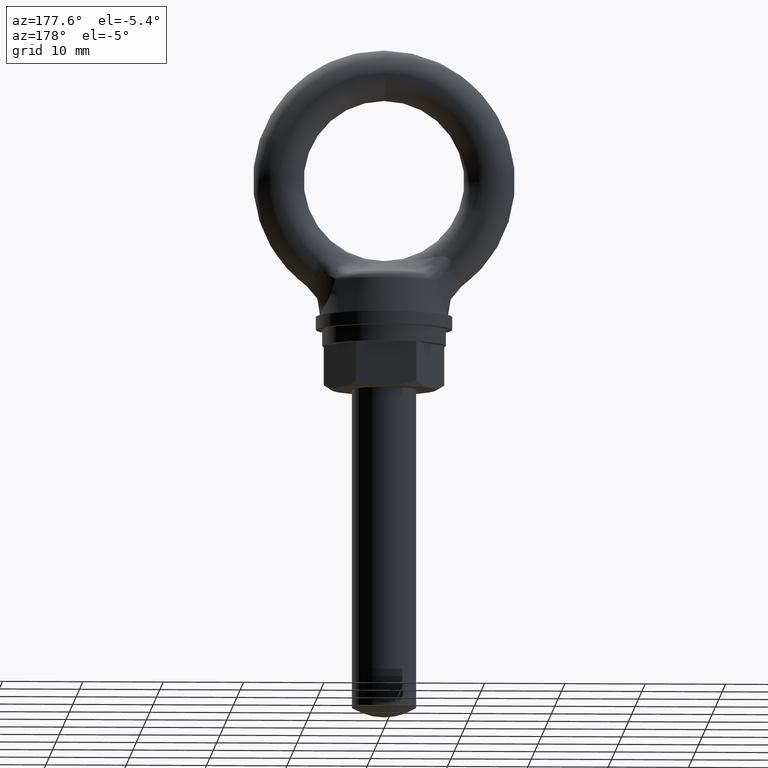
[diagram: clean part render]
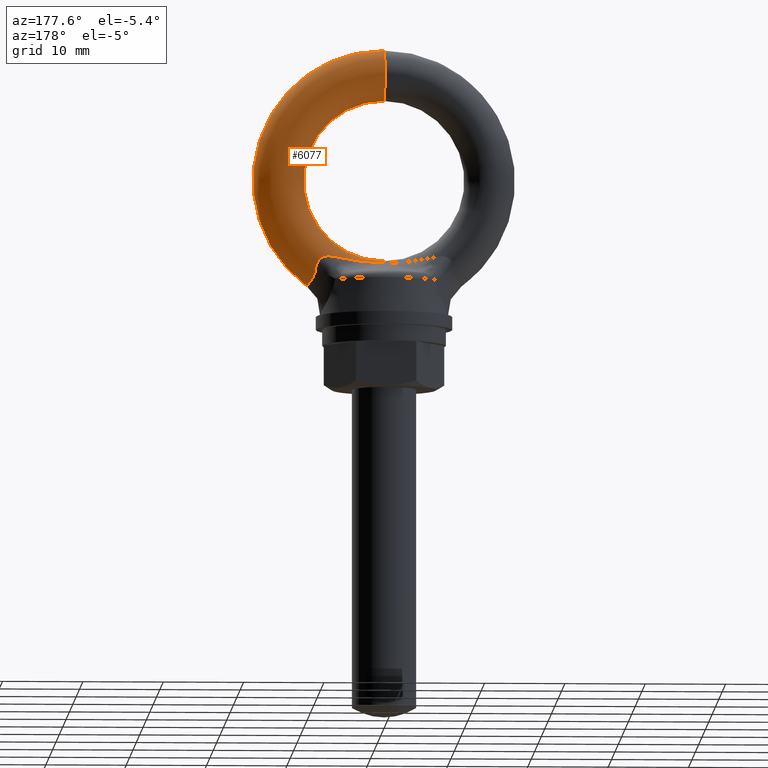
[diagram: same view with one face highlighted and labeled with its STEP entity id]
A machine part, auxiliary view. The second image highlights one B-rep face of the part: STEP entity #6077.
In plain terms, the highlighted toroidal blend (fillet) surface has major radius 13.15 mm and minor (blend) radius 3.15 mm.
Its self-contained STEP definition (entity closure, byte-faithful):
#5957 = ORIENTED_EDGE ( 'NONE', *, *, #5958, .F. ) ;
#5958 = EDGE_CURVE ( 'NONE', #5970, #6092, #6656, .T. ) ;
#5970 = VERTEX_POINT ( 'NONE', #6630 ) ;
#6001 = EDGE_CURVE ( 'NONE', #5970, #6097, #6530, .T. ) ;
#6037 = ORIENTED_EDGE ( 'NONE', *, *, #6001, .T. ) ;
#6038 = ORIENTED_EDGE ( 'NONE', *, *, #6039, .T. ) ;
#6039 = EDGE_CURVE ( 'NONE', #6097, #6096, #7098, .T. ) ;
#6077 = ADVANCED_FACE ( 'NONE', ( #7362 ), #7361, .T. ) ;
#6078 = EDGE_LOOP ( 'NONE', ( #6079, #6080, #6087, #6090, #5957, #6037, #6038 ) ) ;
#6079 = ORIENTED_EDGE ( 'NONE', *, *, #6147, .F. ) ;
#6080 = ORIENTED_EDGE ( 'NONE', *, *, #6081, .T. ) ;
#6081 = EDGE_CURVE ( 'NONE', #6145, #6086, #7542, .T. ) ;
#6086 = VERTEX_POINT ( 'NONE', #7498 ) ;
#6087 = ORIENTED_EDGE ( 'NONE', *, *, #6088, .T. ) ;
#6088 = EDGE_CURVE ( 'NONE', #6086, #6089, #7478, .T. ) ;
#6089 = VERTEX_POINT ( 'NONE', #7477 ) ;
#6090 = ORIENTED_EDGE ( 'NONE', *, *, #6091, .T. ) ;
#6091 = EDGE_CURVE ( 'NONE', #6089, #6092, #7476, .T. ) ;
#6092 = VERTEX_POINT ( 'NONE', #7475 ) ;
#6096 = VERTEX_POINT ( 'NONE', #7443 ) ;
#6097 = VERTEX_POINT ( 'NONE', #7442 ) ;
#6145 = VERTEX_POINT ( 'NONE', #7554 ) ;
#6147 = EDGE_CURVE ( 'NONE', #6145, #6096, #7553, .T. ) ;
#6527 = DIRECTION ( 'NONE',  ( 0.0000000000000000000, 0.0000000000000000000, -1.000000000000000000 ) ) ;
#6528 = DIRECTION ( 'NONE',  ( 0.0000000000000000000, -1.000000000000000000, 0.0000000000000000000 ) ) ;
#6529 = AXIS2_PLACEMENT_3D ( 'NONE', #6535, #6528, #6527 ) ;
#6530 = CIRCLE ( 'NONE', #6529, 9.999994000000079100 ) ;
#6535 = CARTESIAN_POINT ( 'NONE',  ( 0.0000000000000000000, 3.857510014540488600E-016, 0.0000000000000000000 ) ) ;
#6630 = CARTESIAN_POINT ( 'NONE',  ( 0.0000000000000000000, 3.857510014540488600E-016, -9.999994000000079100 ) ) ;
#6647 = DIRECTION ( 'NONE',  ( 0.0000000000000000000, 0.0000000000000000000, 1.000000000000000000 ) ) ;
#6648 = DIRECTION ( 'NONE',  ( -1.000000000000000000, 0.0000000000000000000, 0.0000000000000000000 ) ) ;
#6649 = CARTESIAN_POINT ( 'NONE',  ( 0.0000000000000000000, 0.0000000000000000000, -13.14999400000007900 ) ) ;
#6650 = AXIS2_PLACEMENT_3D ( 'NONE', #6649, #6648, #6647 ) ;
#6656 = CIRCLE ( 'NONE', #6650, 3.149999999999999900 ) ;
#7078 = DIRECTION ( 'NONE',  ( -1.224606353822377000E-016, 0.0000000000000000000, -1.000000000000000000 ) ) ;
#7095 = DIRECTION ( 'NONE',  ( 1.000000000000000000, 0.0000000000000000000, -1.224606353822377300E-016 ) ) ;
#7096 = CARTESIAN_POINT ( 'NONE',  ( 1.610356620512623500E-015, 0.0000000000000000000, 13.14999400000007900 ) ) ;
#7097 = AXIS2_PLACEMENT_3D ( 'NONE', #7096, #7095, #7078 ) ;
#7098 = CIRCLE ( 'NONE', #7097, 3.149999999999999900 ) ;
#7357 = CARTESIAN_POINT ( 'NONE',  ( 0.0000000000000000000, 0.0000000000000000000, 0.0000000000000000000 ) ) ;
#7358 = DIRECTION ( 'NONE',  ( 0.0000000000000000000, 0.0000000000000000000, -1.000000000000000000 ) ) ;
#7359 = DIRECTION ( 'NONE',  ( 0.0000000000000000000, -1.000000000000000000, 0.0000000000000000000 ) ) ;
#7360 = AXIS2_PLACEMENT_3D ( 'NONE', #7357, #7359, #7358 ) ;
#7361 = TOROIDAL_SURFACE ( 'NONE', #7360, 13.14999400000007900, 3.149999999999999900 ) ;
#7362 = FACE_OUTER_BOUND ( 'NONE', #6078, .T. ) ;
#7442 = CARTESIAN_POINT ( 'NONE',  ( 1.224605619058574800E-015, 0.0000000000000000000, 9.999994000000079100 ) ) ;
#7443 = CARTESIAN_POINT ( 'NONE',  ( 1.996107621966672900E-015, 0.0000000000000000000, 16.29999400000008000 ) ) ;
#7447 = CARTESIAN_POINT ( 'NONE',  ( -2.405633154568344100E-011, 1.312813704617321800, -10.28660087697820900 ) ) ;
#7448 = CARTESIAN_POINT ( 'NONE',  ( 0.2649706508968890400, 1.312813704615874300, -10.28660087697816100 ) ) ;
#7449 = CARTESIAN_POINT ( 'NONE',  ( 0.5294848154678959400, 1.338117680415176000, -10.28768521646920100 ) ) ;
#7450 = CARTESIAN_POINT ( 'NONE',  ( 1.053637214139890000, 1.418682429079717300, -10.28667663505090800 ) ) ;
#7451 = CARTESIAN_POINT ( 'NONE',  ( 1.312747956517121000, 1.472431971510360600, -10.28422844053859100 ) ) ;
#7452 = CARTESIAN_POINT ( 'NONE',  ( 2.086743989779547000, 1.647642267786752800, -10.26449624868240200 ) ) ;
#7453 = CARTESIAN_POINT ( 'NONE',  ( 2.598647524197659200, 1.782220184700361100, -10.23435750760015500 ) ) ;
#7454 = CARTESIAN_POINT ( 'NONE',  ( 4.128805438667291700, 2.183750895428159900, -10.08908605518294600 ) ) ;
#7455 = CARTESIAN_POINT ( 'NONE',  ( 5.138323633245128100, 2.456381684006301300, -9.919764388177375400 ) ) ;
#7456 = CARTESIAN_POINT ( 'NONE',  ( 6.152873488992949700, 2.685483719806824900, -9.719800085488371300 ) ) ;
#7459 = CARTESIAN_POINT ( 'NONE',  ( 6.152873488992949700, 2.685483719806824900, -9.719800085488371300 ) ) ;
#7460 = CARTESIAN_POINT ( 'NONE',  ( 6.433098020521300400, 2.748763025688812700, -9.664568789829552000 ) ) ;
#7461 = CARTESIAN_POINT ( 'NONE',  ( 6.713842931349367000, 2.820060651338888400, -9.626082129971962300 ) ) ;
#7462 = CARTESIAN_POINT ( 'NONE',  ( 7.139126643401128000, 2.931317358045900400, -9.637263160562232800 ) ) ;
#7463 = CARTESIAN_POINT ( 'NONE',  ( 7.281213677273281200, 2.968887560562099000, -9.653225894458497400 ) ) ;
#7464 = CARTESIAN_POINT ( 'NONE',  ( 7.555746027686889300, 3.038156767550213500, -9.718993856863791700 ) ) ;
#7465 = CARTESIAN_POINT ( 'NONE',  ( 7.687731019910088100, 3.069755996549759800, -9.768359361254233900 ) ) ;
#7466 = CARTESIAN_POINT ( 'NONE',  ( 7.939150117501757400, 3.120313652426903900, -9.909752336892085000 ) ) ;
#7467 = CARTESIAN_POINT ( 'NONE',  ( 8.055299220813486400, 3.138285965861463000, -10.00092109609175300 ) ) ;
#7468 = CARTESIAN_POINT ( 'NONE',  ( 8.256394619316518300, 3.153364598707532700, -10.21461749147264400 ) ) ;
#7469 = CARTESIAN_POINT ( 'NONE',  ( 8.339590253798430600, 3.150669125834294700, -10.33386421726156700 ) ) ;
#7470 = CARTESIAN_POINT ( 'NONE',  ( 8.477012978130579400, 3.125585216918076400, -10.59301465609064900 ) ) ;
#7471 = CARTESIAN_POINT ( 'NONE',  ( 8.529147762713030500, 3.103318329462873200, -10.72981452118260000 ) ) ;
#7472 = CARTESIAN_POINT ( 'NONE',  ( 8.603870871325121100, 3.044847357653990700, -11.00387439897270000 ) ) ;
#7473 = CARTESIAN_POINT ( 'NONE',  ( 8.627174286311872100, 3.008524409970247900, -11.14255267489566800 ) ) ;
#7474 = CARTESIAN_POINT ( 'NONE',  ( 8.638270361975658700, 2.966346601564374900, -11.28273147987916000 ) ) ;
#7475 = CARTESIAN_POINT ( 'NONE',  ( -2.405633154568344100E-011, 1.312813704617321800, -10.28660087697820900 ) ) ;
#7476 = B_SPLINE_CURVE_WITH_KNOTS ( 'NONE', 3,
 ( #7456, #7455, #7454, #7453, #7452, #7451, #7450, #7449, #7448, #7447 ),
 .UNSPECIFIED., .F., .F.,
 ( 4, 2, 2, 2, 4 ),
 ( 0.0000000000000000000, 0.003174454141289187100, 0.004761681211933780700, 0.005555294747256077900, 0.006348908282578376000 ),
 .UNSPECIFIED. ) ;
#7477 = CARTESIAN_POINT ( 'NONE',  ( 6.152873488992949700, 2.685483719806824900, -9.719800085488371300 ) ) ;
#7478 = B_SPLINE_CURVE_WITH_KNOTS ( 'NONE', 3,
 ( #7474, #7473, #7472, #7471, #7470, #7469, #7468, #7467, #7466, #7465, #7464, #7463, #7462, #7461, #7460, #7459 ),
 .UNSPECIFIED., .F., .F.,
 ( 4, 2, 2, 2, 2, 2, 2, 4 ),
 ( 0.0000000000000000000, 0.0004346782451274835500, 0.0008693564902549671000, 0.001304034735382450600, 0.001738712980509934200, 0.002173391225637417800, 0.002608069470764901200, 0.003477425961019868400 ),
 .UNSPECIFIED. ) ;
#7479 = CARTESIAN_POINT ( 'NONE',  ( 8.638270361975658700, 2.966346601564374900, -11.28273147987916000 ) ) ;
#7480 = CARTESIAN_POINT ( 'NONE',  ( 8.650787464742354200, 2.918767261058134600, -11.44086238677423900 ) ) ;
#7481 = CARTESIAN_POINT ( 'NONE',  ( 8.676431218990918700, 2.860015446724947000, -11.59181003786688200 ) ) ;
#7482 = CARTESIAN_POINT ( 'NONE',  ( 8.750832060216206200, 2.715798190868046200, -11.87809166357828900 ) ) ;
#7483 = CARTESIAN_POINT ( 'NONE',  ( 8.799887077385486500, 2.629763122686829700, -12.01342157138564400 ) ) ;
#7484 = CARTESIAN_POINT ( 'NONE',  ( 8.908880201206548200, 2.436924382064150900, -12.25692943841173100 ) ) ;
#7485 = CARTESIAN_POINT ( 'NONE',  ( 8.968530357885200000, 2.330429923276463400, -12.36571845650937200 ) ) ;
#7486 = CARTESIAN_POINT ( 'NONE',  ( 9.089975639899993400, 2.097464883136957300, -12.56197125587878600 ) ) ;
#7487 = CARTESIAN_POINT ( 'NONE',  ( 9.151975580869663700, 1.970347132332009400, -12.64951690920350400 ) ) ;
#7488 = CARTESIAN_POINT ( 'NONE',  ( 9.267671923761735500, 1.705098417659723500, -12.80098062558283800 ) ) ;
#7489 = CARTESIAN_POINT ( 'NONE',  ( 9.321976539389952500, 1.565979302890703900, -12.86585766556078500 ) ) ;
#7490 = CARTESIAN_POINT ( 'NONE',  ( 9.419399978033911900, 1.274656002642312400, -12.97699592908825000 ) ) ;
#7491 = CARTESIAN_POINT ( 'NONE',  ( 9.462773961038273300, 1.121104659116109800, -13.02345938878508100 ) ) ;
#7492 = CARTESIAN_POINT ( 'NONE',  ( 9.532753936777899300, 0.8097297115362938100, -13.09653066624473400 ) ) ;
#7493 = CARTESIAN_POINT ( 'NONE',  ( 9.559700916552136700, 0.6513720349764957600, -13.12352702828576400 ) ) ;
#7498 = CARTESIAN_POINT ( 'NONE',  ( 8.638270361975658700, 2.966346601564374900, -11.28273147987916000 ) ) ;
#7538 = CARTESIAN_POINT ( 'NONE',  ( 9.596149923696232900, 0.3293158955999203600, -13.15976250009347800 ) ) ;
#7539 = CARTESIAN_POINT ( 'NONE',  ( 9.605629471948454100, 0.1641749467784402700, -13.16896681018128700 ) ) ;
#7540 = CARTESIAN_POINT ( 'NONE',  ( 9.605629471948850200, 1.063394445858165000E-011, -13.16896681018166500 ) ) ;
#7542 = B_SPLINE_CURVE_WITH_KNOTS ( 'NONE', 3,
 ( #7540, #7539, #7538, #7493, #7492, #7491, #7490, #7489, #7488, #7487, #7486, #7485, #7484, #7483, #7482, #7481, #7480, #7479 ),
 .UNSPECIFIED., .F., .F.,
 ( 4, 2, 2, 2, 2, 2, 2, 2, 4 ),
 ( 0.003913414399811526400, 0.004401875034704189600, 0.004890335669596852800, 0.005378796304489516000, 0.005867256939382179200, 0.006355717574274842400, 0.006844178209167506500, 0.007332638844060169700, 0.007821099478952833800 ),
 .UNSPECIFIED. ) ;
#7549 = DIRECTION ( 'NONE',  ( 0.0000000000000000000, 0.0000000000000000000, -1.000000000000000000 ) ) ;
#7550 = DIRECTION ( 'NONE',  ( 0.0000000000000000000, -1.000000000000000000, 0.0000000000000000000 ) ) ;
#7551 = CARTESIAN_POINT ( 'NONE',  ( 0.0000000000000000000, 0.0000000000000000000, 0.0000000000000000000 ) ) ;
#7552 = AXIS2_PLACEMENT_3D ( 'NONE', #7551, #7550, #7549 ) ;
#7553 = CIRCLE ( 'NONE', #7552, 16.29999400000008000 ) ;
#7554 = CARTESIAN_POINT ( 'NONE',  ( 9.605629471948850200, 1.063394445858165000E-011, -13.16896681018166500 ) ) ;